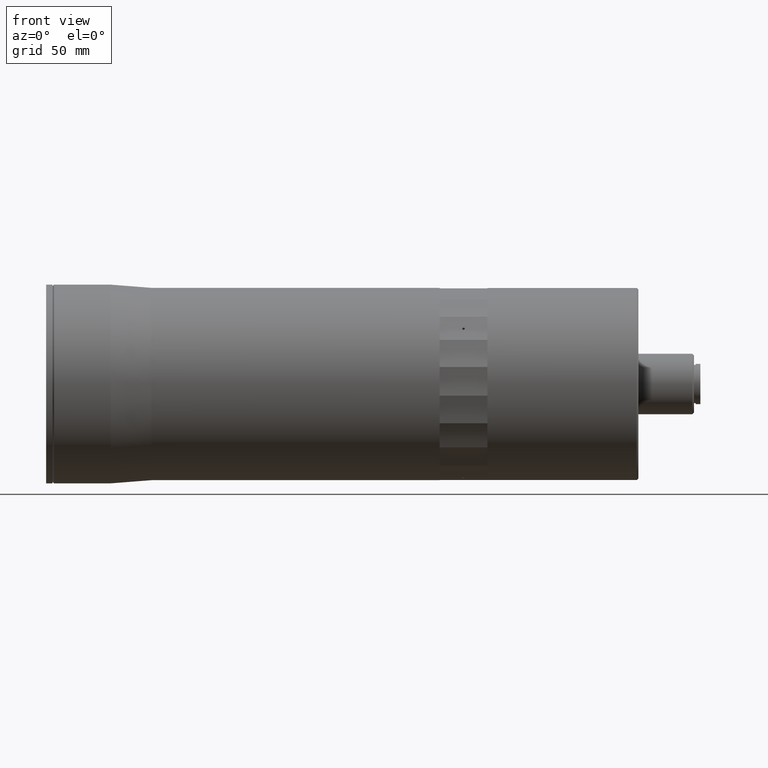
[diagram: clean part render]
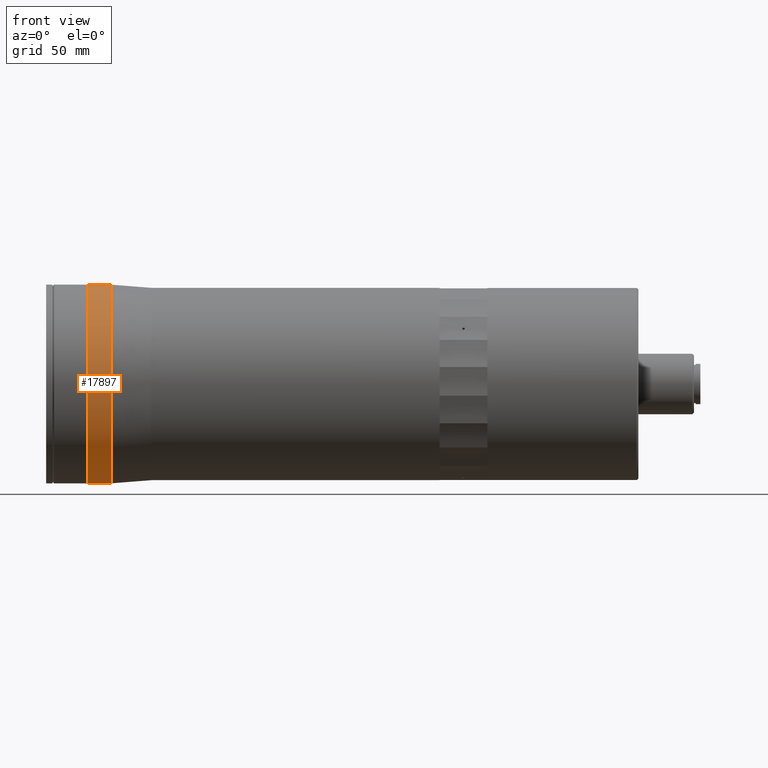
[diagram: same view with one face highlighted and labeled with its STEP entity id]
A machine part, front view. The second image highlights one B-rep face of the part: STEP entity #17897.
In plain terms, the highlighted cylindrical surface (partial cylindrical patch) has radius 62.5 mm, axis along (-1, -0, -0).
Its self-contained STEP definition (entity closure, byte-faithful):
#348 = EDGE_CURVE ( 'NONE', #8561, #10941, #12313, .T. ) ;
#911 = VECTOR ( 'NONE', #18675, 1000.000000000000000 ) ;
#3288 = EDGE_CURVE ( 'NONE', #11844, #20453, #18660, .T. ) ;
#4585 = DIRECTION ( 'NONE',  ( -1.000000000000000000, -0.0000000000000000000, -0.0000000000000000000 ) ) ;
#4891 = EDGE_LOOP ( 'NONE', ( #10311, #15700, #17664, #15027 ) ) ;
#5159 = EDGE_CURVE ( 'NONE', #20453, #10941, #8703, .T. ) ;
#5618 = DIRECTION ( 'NONE',  ( 0.0000000000000000000, 0.0000000000000000000, 1.000000000000000000 ) ) ;
#5806 = AXIS2_PLACEMENT_3D ( 'NONE', #14241, #10719, #13381 ) ;
#6554 = CARTESIAN_POINT ( 'NONE',  ( -125.8137890602518100, 0.0000000000000000000, 62.49999999999993600 ) ) ;
#7095 = DIRECTION ( 'NONE',  ( -1.000000000000000000, -0.0000000000000000000, -0.0000000000000000000 ) ) ;
#7190 = CARTESIAN_POINT ( 'NONE',  ( -263.4826662583937500, 7.654042494670949900E-015, -62.49999999999993600 ) ) ;
#8368 = VECTOR ( 'NONE', #4585, 1000.000000000000000 ) ;
#8561 = VERTEX_POINT ( 'NONE', #15393 ) ;
#8703 = CIRCLE ( 'NONE', #13894, 62.49999999999993600 ) ;
#10311 = ORIENTED_EDGE ( 'NONE', *, *, #3288, .F. ) ;
#10719 = DIRECTION ( 'NONE',  ( -1.000000000000000000, -0.0000000000000000000, -0.0000000000000000000 ) ) ;
#10941 = VERTEX_POINT ( 'NONE', #12494 ) ;
#11844 = VERTEX_POINT ( 'NONE', #14994 ) ;
#12313 = LINE ( 'NONE', #6554, #8368 ) ;
#12494 = CARTESIAN_POINT ( 'NONE',  ( -263.4826662583937500, 0.0000000000000000000, 62.49999999999993600 ) ) ;
#13381 = DIRECTION ( 'NONE',  ( 0.0000000000000000000, 0.0000000000000000000, 1.000000000000000000 ) ) ;
#13601 = DIRECTION ( 'NONE',  ( 0.0000000000000000000, 0.0000000000000000000, 1.000000000000000000 ) ) ;
#13894 = AXIS2_PLACEMENT_3D ( 'NONE', #16035, #7095, #5618 ) ;
#14043 = AXIS2_PLACEMENT_3D ( 'NONE', #20698, #22615, #13601 ) ;
#14241 = CARTESIAN_POINT ( 'NONE',  ( -125.8137890602518100, 0.0000000000000000000, 0.0000000000000000000 ) ) ;
#14662 = EDGE_CURVE ( 'NONE', #11844, #8561, #18041, .T. ) ;
#14949 = CARTESIAN_POINT ( 'NONE',  ( -125.8137890602518100, 7.654042494670949900E-015, -62.49999999999993600 ) ) ;
#14994 = CARTESIAN_POINT ( 'NONE',  ( -248.7170261548746700, 7.654042494670949900E-015, -62.49999999999993600 ) ) ;
#15027 = ORIENTED_EDGE ( 'NONE', *, *, #5159, .F. ) ;
#15367 = FACE_OUTER_BOUND ( 'NONE', #4891, .T. ) ;
#15393 = CARTESIAN_POINT ( 'NONE',  ( -248.7170261548746700, 0.0000000000000000000, 62.49999999999993600 ) ) ;
#15700 = ORIENTED_EDGE ( 'NONE', *, *, #14662, .T. ) ;
#16035 = CARTESIAN_POINT ( 'NONE',  ( -263.4826662583937500, 0.0000000000000000000, 0.0000000000000000000 ) ) ;
#17664 = ORIENTED_EDGE ( 'NONE', *, *, #348, .T. ) ;
#17897 = ADVANCED_FACE ( 'NONE', ( #15367 ), #23285, .T. ) ;
#18041 = CIRCLE ( 'NONE', #14043, 62.49999999999993600 ) ;
#18660 = LINE ( 'NONE', #14949, #911 ) ;
#18675 = DIRECTION ( 'NONE',  ( -1.000000000000000000, -0.0000000000000000000, -0.0000000000000000000 ) ) ;
#20453 = VERTEX_POINT ( 'NONE', #7190 ) ;
#20698 = CARTESIAN_POINT ( 'NONE',  ( -248.7170261548746700, 0.0000000000000000000, 0.0000000000000000000 ) ) ;
#22615 = DIRECTION ( 'NONE',  ( -1.000000000000000000, -0.0000000000000000000, -0.0000000000000000000 ) ) ;
#23285 = CYLINDRICAL_SURFACE ( 'NONE', #5806, 62.49999999999993600 ) ;